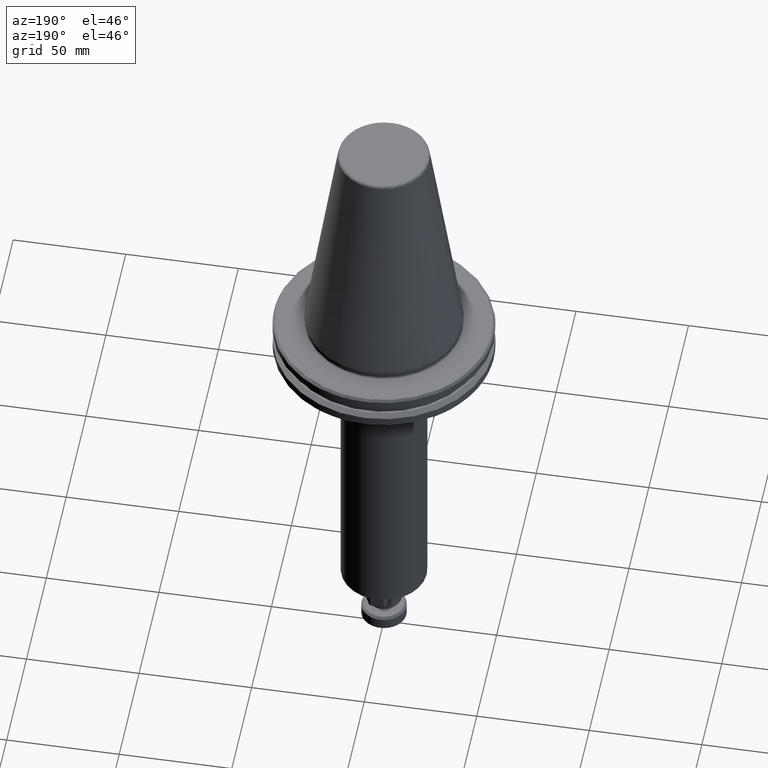
[diagram: clean part render]
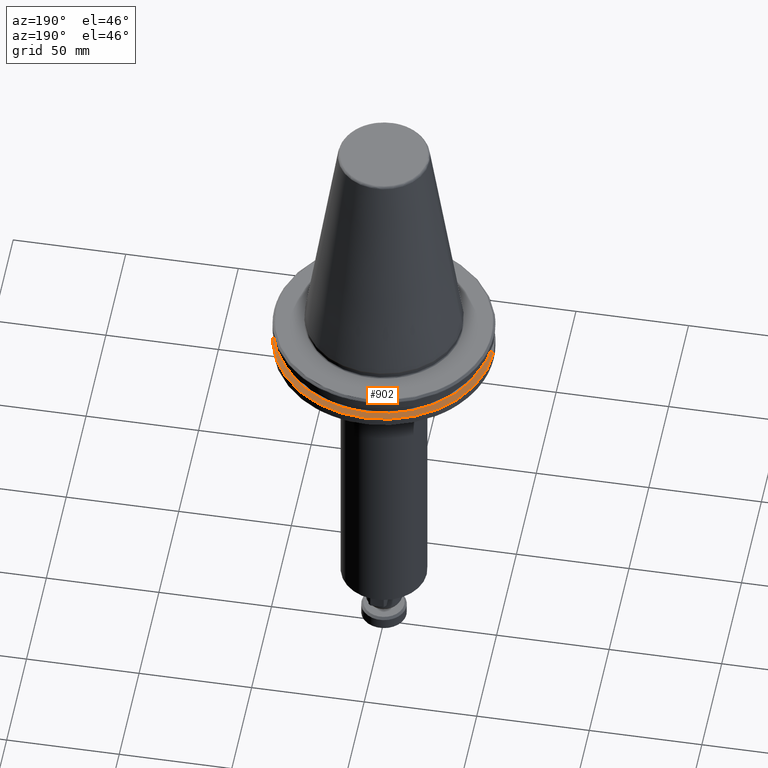
[diagram: same view with one face highlighted and labeled with its STEP entity id]
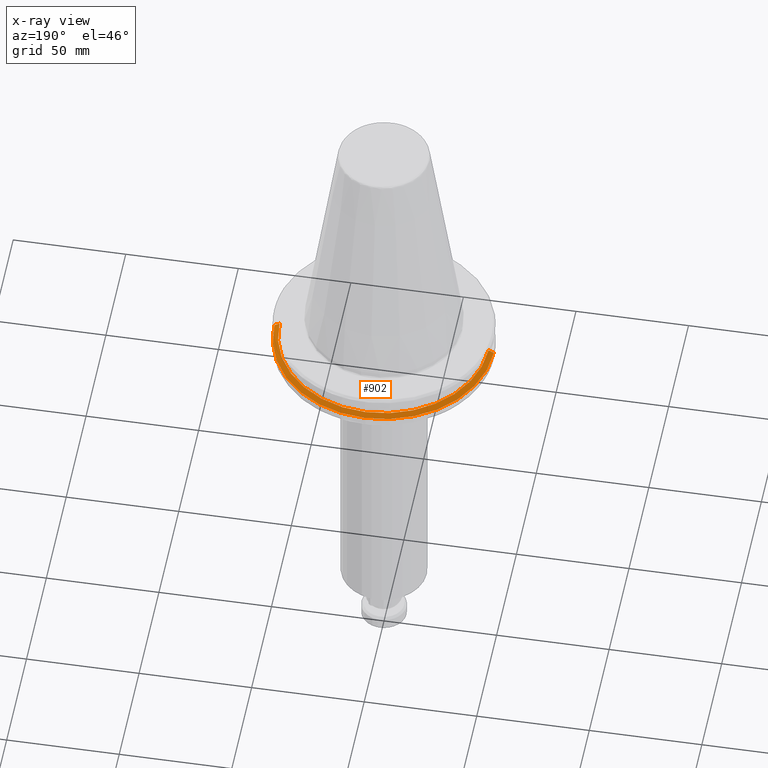
[diagram: x-ray of the same camera — body ghosted, the highlighted face saturated]
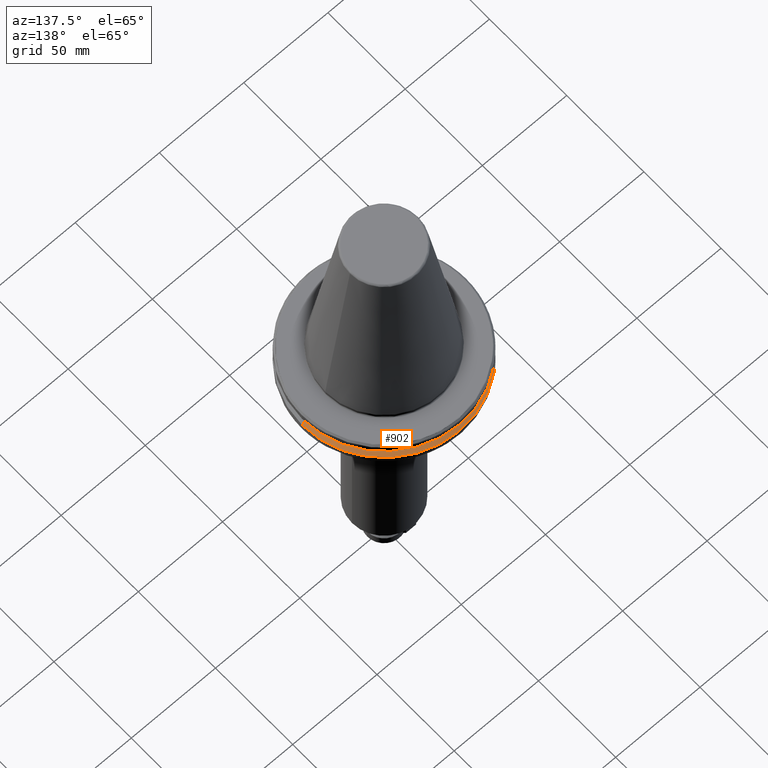
[diagram: same view with one face highlighted and labeled with its STEP entity id]
A machine part, auxiliary view. The second image highlights one B-rep face of the part: STEP entity #902.
The next image is the same camera in x-ray: the body ghosted, the highlighted face saturated — about 0% of this face is hidden behind the body in this view.
A second angle (auxiliary view) of the same face is appended — the face is thin or edge-on in the first view.
In plain terms, the highlighted conical surface has half-angle 60 deg.
Its self-contained STEP definition (entity closure, byte-faithful):
#7 = VECTOR ( 'NONE', #1131, 1000.000000000000100 ) ;
#14 = DIRECTION ( 'NONE',  ( -1.000000000000000000, 0.0000000000000000000, 0.0000000000000000000 ) ) ;
#30 = DIRECTION ( 'NONE',  ( -1.000000000000000000, 0.0000000000000000000, 0.0000000000000000000 ) ) ;
#134 = DIRECTION ( 'NONE',  ( -1.000000000000000000, 0.0000000000000000000, 0.0000000000000000000 ) ) ;
#170 = VECTOR ( 'NONE', #2984, 1000.000000000000100 ) ;
#267 = AXIS2_PLACEMENT_3D ( 'NONE', #3770, #1920, #134 ) ;
#481 = EDGE_CURVE ( 'NONE', #2379, #1214, #2404, .T. ) ;
#902 = ADVANCED_FACE ( 'NONE', ( #3702 ), #3611, .T. ) ;
#905 = VERTEX_POINT ( 'NONE', #3357 ) ;
#1037 = ORIENTED_EDGE ( 'NONE', *, *, #3334, .T. ) ;
#1117 = AXIS2_PLACEMENT_3D ( 'NONE', #2737, #1220, #14 ) ;
#1131 = DIRECTION ( 'NONE',  ( 0.8660254037844393700, 1.060575238724907800E-016, -0.4999999999999985000 ) ) ;
#1214 = VERTEX_POINT ( 'NONE', #1635 ) ;
#1220 = DIRECTION ( 'NONE',  ( 0.0000000000000000000, 0.0000000000000000000, -1.000000000000000000 ) ) ;
#1242 = ORIENTED_EDGE ( 'NONE', *, *, #481, .T. ) ;
#1452 = CIRCLE ( 'NONE', #2685, 48.75000000000000000 ) ;
#1635 = CARTESIAN_POINT ( 'NONE',  ( 48.75000000000001400, 0.0000000000000000000, -14.34759526419166200 ) ) ;
#1829 = DIRECTION ( 'NONE',  ( -0.0000000000000000000, -0.0000000000000000000, 1.000000000000000000 ) ) ;
#1917 = EDGE_CURVE ( 'NONE', #905, #2379, #3610, .T. ) ;
#1920 = DIRECTION ( 'NONE',  ( 0.0000000000000000000, 0.0000000000000000000, -1.000000000000000000 ) ) ;
#1936 = LINE ( 'NONE', #2682, #170 ) ;
#1989 = ORIENTED_EDGE ( 'NONE', *, *, #1917, .T. ) ;
#2117 = CARTESIAN_POINT ( 'NONE',  ( 46.41589653438085600, 5.827230528940885300E-015, -13.00000000000001100 ) ) ;
#2158 = VERTEX_POINT ( 'NONE', #2299 ) ;
#2299 = CARTESIAN_POINT ( 'NONE',  ( -48.75000000000001400, 5.970153145843347900E-015, -14.34759526419166200 ) ) ;
#2379 = VERTEX_POINT ( 'NONE', #2117 ) ;
#2404 = LINE ( 'NONE', #2637, #7 ) ;
#2637 = CARTESIAN_POINT ( 'NONE',  ( 48.75000000000001400, 5.970153145843348700E-015, -14.34759526419166600 ) ) ;
#2682 = CARTESIAN_POINT ( 'NONE',  ( -48.75000000000001400, 0.0000000000000000000, -14.34759526419166600 ) ) ;
#2685 = AXIS2_PLACEMENT_3D ( 'NONE', #3668, #1829, #30 ) ;
#2737 = CARTESIAN_POINT ( 'NONE',  ( 0.0000000000000000000, 0.0000000000000000000, -14.34759526419166600 ) ) ;
#2912 = EDGE_CURVE ( 'NONE', #905, #2158, #1936, .T. ) ;
#2984 = DIRECTION ( 'NONE',  ( -0.8660254037844393700, 0.0000000000000000000, -0.4999999999999985000 ) ) ;
#3262 = EDGE_LOOP ( 'NONE', ( #1989, #1242, #1037, #3891 ) ) ;
#3334 = EDGE_CURVE ( 'NONE', #1214, #2158, #1452, .T. ) ;
#3357 = CARTESIAN_POINT ( 'NONE',  ( -46.41589653438085600, 0.0000000000000000000, -13.00000000000001100 ) ) ;
#3610 = CIRCLE ( 'NONE', #267, 46.41589653438085600 ) ;
#3611 = CONICAL_SURFACE ( 'NONE', #1117, 48.75000000000001400, 1.047197551196599400 ) ;
#3668 = CARTESIAN_POINT ( 'NONE',  ( 0.0000000000000000000, 0.0000000000000000000, -14.34759526419166200 ) ) ;
#3702 = FACE_OUTER_BOUND ( 'NONE', #3262, .T. ) ;
#3770 = CARTESIAN_POINT ( 'NONE',  ( 0.0000000000000000000, 0.0000000000000000000, -13.00000000000001100 ) ) ;
#3891 = ORIENTED_EDGE ( 'NONE', *, *, #2912, .F. ) ;